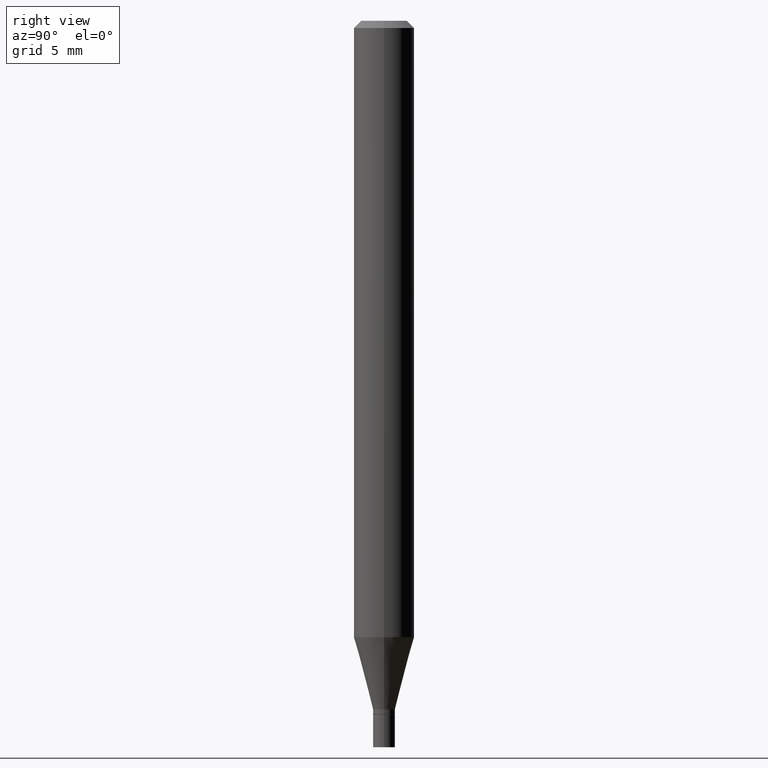
[diagram: clean part render]
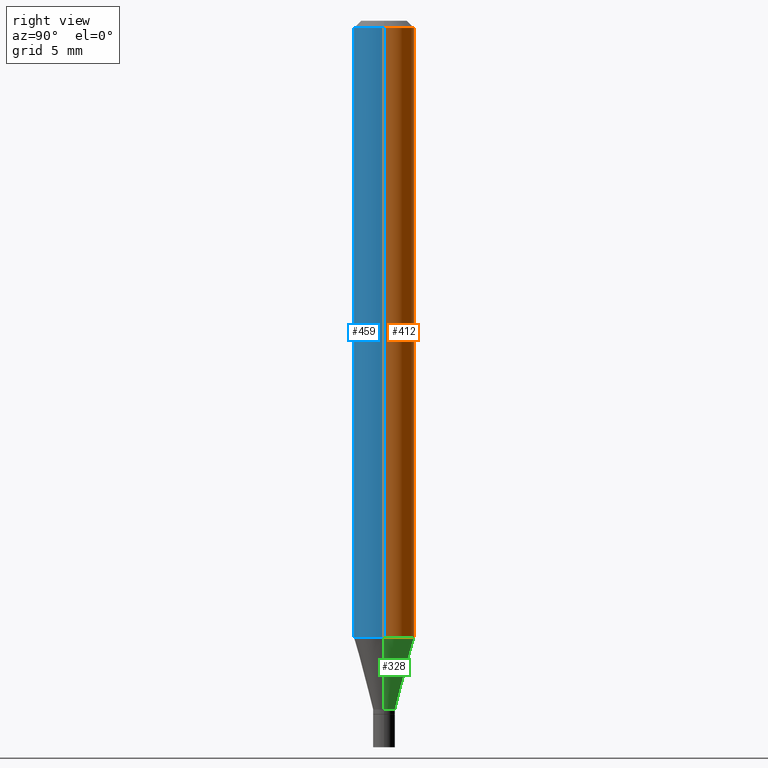
[diagram: same view with three faces highlighted in distinct colors, each labeled with its STEP entity id]
A machine part, right view with three faces highlighted in distinct colors.
Their STEP definitions:

[orange] entity #412 — the highlighted cylindrical surface (edge-blend (fillet) strip) has radius 1.5875 mm, axis along (-0, 0, 1).
#2 = CARTESIAN_POINT ( 'NONE',  ( 0.06250000000000000000, -4.888073874380388472E-16, -0.01499999999999999944 ) ) ;
#18 = VERTEX_POINT ( 'NONE', #124 ) ;
#35 = EDGE_CURVE ( 'NONE', #18, #370, #171, .T. ) ;
#36 = DIRECTION ( 'NONE',  ( -2.445468806185136597E-29, 3.491481338843145583E-15, 1.000000000000000000 ) ) ;
#60 = CARTESIAN_POINT ( 'NONE',  ( -0.06250000000000000000, -1.803932417103912611E-15, -0.01499999999999999944 ) ) ;
#63 = EDGE_CURVE ( 'NONE', #18, #232, #393, .T. ) ;
#94 = ORIENTED_EDGE ( 'NONE', *, *, #35, .F. ) ;
#98 = VECTOR ( 'NONE', #213, 39.37007874015748143 ) ;
#105 = CARTESIAN_POINT ( 'NONE',  ( 3.112392089074953397E-29, -4.443671033825302981E-15, -1.272717967697244434 ) ) ;
#109 = DIRECTION ( 'NONE',  ( 1.000000000000000000, -6.982962677686266711E-15, 4.876176775795935793E-29 ) ) ;
#121 = AXIS2_PLACEMENT_3D ( 'NONE', #391, #132, #205 ) ;
#124 = CARTESIAN_POINT ( 'NONE',  ( 0.06250000000000000000, -4.880106201180694651E-15, -1.272717967697244434 ) ) ;
#127 = CIRCLE ( 'NONE', #121, 0.06250000000000000000 ) ;
#132 = DIRECTION ( 'NONE',  ( -2.445468806185136597E-29, 3.491481338843145583E-15, 1.000000000000000000 ) ) ;
#161 = EDGE_CURVE ( 'NONE', #232, #236, #170, .T. ) ;
#162 = ORIENTED_EDGE ( 'NONE', *, *, #245, .F. ) ;
#170 = LINE ( 'NONE', #415, #98 ) ;
#171 = LINE ( 'NONE', #318, #311 ) ;
#177 = DIRECTION ( 'NONE',  ( 1.000000000000000000, -6.982962677686262766E-15, 0.000000000000000000 ) ) ;
#202 = ORIENTED_EDGE ( 'NONE', *, *, #63, .T. ) ;
#205 = DIRECTION ( 'NONE',  ( 1.000000000000000000, -6.982962677686266711E-15, 0.000000000000000000 ) ) ;
#213 = DIRECTION ( 'NONE',  ( -2.445468806185136877E-29, 3.491481338843145188E-15, 1.000000000000000000 ) ) ;
#232 = VERTEX_POINT ( 'NONE', #455 ) ;
#236 = VERTEX_POINT ( 'NONE', #60 ) ;
#245 = EDGE_CURVE ( 'NONE', #370, #236, #127, .T. ) ;
#251 = FACE_OUTER_BOUND ( 'NONE', #269, .T. ) ;
#258 = AXIS2_PLACEMENT_3D ( 'NONE', #260, #402, #109 ) ;
#260 = CARTESIAN_POINT ( 'NONE',  ( 0.000000000000000000, 0.000000000000000000, 0.000000000000000000 ) ) ;
#269 = EDGE_LOOP ( 'NONE', ( #202, #416, #162, #94 ) ) ;
#311 = VECTOR ( 'NONE', #462, 39.37007874015748143 ) ;
#318 = CARTESIAN_POINT ( 'NONE',  ( 0.06250000000000000000, -4.364351673553916694E-16, 3.047610484872459871E-30 ) ) ;
#370 = VERTEX_POINT ( 'NONE', #2 ) ;
#391 = CARTESIAN_POINT ( 'NONE',  ( 3.668203209277705088E-31, -5.237222008264718399E-17, -0.01499999999999999944 ) ) ;
#393 = CIRCLE ( 'NONE', #444, 0.06250000000000000000 ) ;
#402 = DIRECTION ( 'NONE',  ( -2.445468806185136597E-29, 3.491481338843145583E-15, 1.000000000000000000 ) ) ;
#412 = ADVANCED_FACE ( 'NONE', ( #251 ), #429, .T. ) ;
#415 = CARTESIAN_POINT ( 'NONE',  ( -0.06250000000000000000, 4.440892098500626162E-16, -3.074334431409316114E-30 ) ) ;
#416 = ORIENTED_EDGE ( 'NONE', *, *, #161, .T. ) ;
#429 = CYLINDRICAL_SURFACE ( 'NONE', #258, 0.06250000000000000000 ) ;
#444 = AXIS2_PLACEMENT_3D ( 'NONE', #105, #36, #177 ) ;
#455 = CARTESIAN_POINT ( 'NONE',  ( -0.06250000000000000000, -3.999581823975240365E-15, -1.272717967697244434 ) ) ;
#462 = DIRECTION ( 'NONE',  ( -2.445468806185136877E-29, 3.491481338843145188E-15, 1.000000000000000000 ) ) ;

[blue] entity #459 — the highlighted cylindrical surface (edge-blend (fillet) strip) has radius 1.5875 mm, axis along (-0, 0, 1).
#2 = CARTESIAN_POINT ( 'NONE',  ( 0.06250000000000000000, -4.888073874380388472E-16, -0.01499999999999999944 ) ) ;
#4 = DIRECTION ( 'NONE',  ( 1.000000000000000000, -6.982962677686266711E-15, 0.000000000000000000 ) ) ;
#9 = AXIS2_PLACEMENT_3D ( 'NONE', #248, #388, #382 ) ;
#18 = VERTEX_POINT ( 'NONE', #124 ) ;
#20 = CIRCLE ( 'NONE', #199, 0.06250000000000000000 ) ;
#25 = ORIENTED_EDGE ( 'NONE', *, *, #237, .T. ) ;
#35 = EDGE_CURVE ( 'NONE', #18, #370, #171, .T. ) ;
#41 = FACE_OUTER_BOUND ( 'NONE', #450, .T. ) ;
#60 = CARTESIAN_POINT ( 'NONE',  ( -0.06250000000000000000, -1.803932417103912611E-15, -0.01499999999999999944 ) ) ;
#98 = VECTOR ( 'NONE', #213, 39.37007874015748143 ) ;
#124 = CARTESIAN_POINT ( 'NONE',  ( 0.06250000000000000000, -4.880106201180694651E-15, -1.272717967697244434 ) ) ;
#161 = EDGE_CURVE ( 'NONE', #232, #236, #170, .T. ) ;
#170 = LINE ( 'NONE', #415, #98 ) ;
#171 = LINE ( 'NONE', #318, #311 ) ;
#179 = CARTESIAN_POINT ( 'NONE',  ( 3.668203209277705088E-31, -5.237222008264718399E-17, -0.01499999999999999944 ) ) ;
#183 = CYLINDRICAL_SURFACE ( 'NONE', #420, 0.06250000000000000000 ) ;
#199 = AXIS2_PLACEMENT_3D ( 'NONE', #179, #325, #4 ) ;
#213 = DIRECTION ( 'NONE',  ( -2.445468806185136877E-29, 3.491481338843145188E-15, 1.000000000000000000 ) ) ;
#232 = VERTEX_POINT ( 'NONE', #455 ) ;
#236 = VERTEX_POINT ( 'NONE', #60 ) ;
#237 = EDGE_CURVE ( 'NONE', #232, #18, #270, .T. ) ;
#248 = CARTESIAN_POINT ( 'NONE',  ( 3.112392089074953397E-29, -4.443671033825302981E-15, -1.272717967697244434 ) ) ;
#262 = ORIENTED_EDGE ( 'NONE', *, *, #161, .F. ) ;
#270 = CIRCLE ( 'NONE', #9, 0.06250000000000000000 ) ;
#300 = ORIENTED_EDGE ( 'NONE', *, *, #451, .F. ) ;
#311 = VECTOR ( 'NONE', #462, 39.37007874015748143 ) ;
#318 = CARTESIAN_POINT ( 'NONE',  ( 0.06250000000000000000, -4.364351673553916694E-16, 3.047610484872459871E-30 ) ) ;
#325 = DIRECTION ( 'NONE',  ( -2.445468806185136597E-29, 3.491481338843145583E-15, 1.000000000000000000 ) ) ;
#329 = CARTESIAN_POINT ( 'NONE',  ( 0.000000000000000000, 0.000000000000000000, 0.000000000000000000 ) ) ;
#370 = VERTEX_POINT ( 'NONE', #2 ) ;
#382 = DIRECTION ( 'NONE',  ( 1.000000000000000000, -6.982962677686262766E-15, 0.000000000000000000 ) ) ;
#388 = DIRECTION ( 'NONE',  ( -2.445468806185136597E-29, 3.491481338843145583E-15, 1.000000000000000000 ) ) ;
#399 = DIRECTION ( 'NONE',  ( 1.000000000000000000, -6.982962677686266711E-15, 4.876176775795935793E-29 ) ) ;
#415 = CARTESIAN_POINT ( 'NONE',  ( -0.06250000000000000000, 4.440892098500626162E-16, -3.074334431409316114E-30 ) ) ;
#420 = AXIS2_PLACEMENT_3D ( 'NONE', #329, #433, #399 ) ;
#433 = DIRECTION ( 'NONE',  ( -2.445468806185136597E-29, 3.491481338843145583E-15, 1.000000000000000000 ) ) ;
#450 = EDGE_LOOP ( 'NONE', ( #262, #25, #456, #300 ) ) ;
#451 = EDGE_CURVE ( 'NONE', #236, #370, #20, .T. ) ;
#455 = CARTESIAN_POINT ( 'NONE',  ( -0.06250000000000000000, -3.999581823975240365E-15, -1.272717967697244434 ) ) ;
#456 = ORIENTED_EDGE ( 'NONE', *, *, #35, .T. ) ;
#459 = ADVANCED_FACE ( 'NONE', ( #41 ), #183, .T. ) ;
#462 = DIRECTION ( 'NONE',  ( -2.445468806185136877E-29, 3.491481338843145188E-15, 1.000000000000000000 ) ) ;

[green] entity #328 — the highlighted conical surface has half-angle 15 deg.
#11 = ORIENTED_EDGE ( 'NONE', *, *, #250, .F. ) ;
#18 = VERTEX_POINT ( 'NONE', #124 ) ;
#30 = LINE ( 'NONE', #463, #135 ) ;
#36 = DIRECTION ( 'NONE',  ( -2.445468806185136597E-29, 3.491481338843145583E-15, 1.000000000000000000 ) ) ;
#61 = EDGE_LOOP ( 'NONE', ( #345, #128, #240, #11 ) ) ;
#63 = EDGE_CURVE ( 'NONE', #18, #232, #393, .T. ) ;
#66 = DIRECTION ( 'NONE',  ( -0.2588190451025205729, 5.211531920934544731E-15, 0.9659258262890682012 ) ) ;
#95 = DIRECTION ( 'NONE',  ( -2.445468806185136597E-29, 3.491481338843145583E-15, 1.000000000000000000 ) ) ;
#97 = DIRECTION ( 'NONE',  ( 0.2588190451025205729, 1.565188264969627490E-15, 0.9659258262890682012 ) ) ;
#105 = CARTESIAN_POINT ( 'NONE',  ( 3.112392089074953397E-29, -4.443671033825302981E-15, -1.272717967697244434 ) ) ;
#124 = CARTESIAN_POINT ( 'NONE',  ( 0.06250000000000000000, -4.880106201180694651E-15, -1.272717967697244434 ) ) ;
#128 = ORIENTED_EDGE ( 'NONE', *, *, #194, .T. ) ;
#134 = CARTESIAN_POINT ( 'NONE',  ( 0.02249999999999991937, -5.122003124082893419E-15, -1.421999999999999931 ) ) ;
#135 = VECTOR ( 'NONE', #97, 39.37007874015748854 ) ;
#136 = CARTESIAN_POINT ( 'NONE',  ( 3.477456642395264859E-29, -4.964886463834953365E-15, -1.421999999999999931 ) ) ;
#169 = EDGE_CURVE ( 'NONE', #204, #385, #215, .T. ) ;
#177 = DIRECTION ( 'NONE',  ( 1.000000000000000000, -6.982962677686262766E-15, 0.000000000000000000 ) ) ;
#194 = EDGE_CURVE ( 'NONE', #385, #232, #283, .T. ) ;
#203 = DIRECTION ( 'NONE',  ( -2.445468806185136597E-29, 3.491481338843145583E-15, 1.000000000000000000 ) ) ;
#204 = VERTEX_POINT ( 'NONE', #134 ) ;
#211 = CARTESIAN_POINT ( 'NONE',  ( -0.02249999999999991937, -4.805014348288931075E-15, -1.421999999999999931 ) ) ;
#215 = CIRCLE ( 'NONE', #294, 0.02249999999999991937 ) ;
#232 = VERTEX_POINT ( 'NONE', #455 ) ;
#240 = ORIENTED_EDGE ( 'NONE', *, *, #63, .F. ) ;
#243 = DIRECTION ( 'NONE',  ( 1.000000000000000000, -6.982962677686249356E-15, 0.000000000000000000 ) ) ;
#250 = EDGE_CURVE ( 'NONE', #204, #18, #30, .T. ) ;
#263 = AXIS2_PLACEMENT_3D ( 'NONE', #314, #203, #243 ) ;
#283 = LINE ( 'NONE', #211, #428 ) ;
#284 = FACE_OUTER_BOUND ( 'NONE', #61, .T. ) ;
#294 = AXIS2_PLACEMENT_3D ( 'NONE', #136, #95, #320 ) ;
#314 = CARTESIAN_POINT ( 'NONE',  ( 3.477456642395264859E-29, -4.964886463834953365E-15, -1.421999999999999931 ) ) ;
#320 = DIRECTION ( 'NONE',  ( 1.000000000000000000, -6.982962677686249356E-15, 0.000000000000000000 ) ) ;
#328 = ADVANCED_FACE ( 'NONE', ( #284 ), #436, .T. ) ;
#345 = ORIENTED_EDGE ( 'NONE', *, *, #169, .T. ) ;
#385 = VERTEX_POINT ( 'NONE', #465 ) ;
#393 = CIRCLE ( 'NONE', #444, 0.06250000000000000000 ) ;
#428 = VECTOR ( 'NONE', #66, 39.37007874015748854 ) ;
#436 = CONICAL_SURFACE ( 'NONE', #263, 0.02249999999999991937, 0.2617993877991492968 ) ;
#444 = AXIS2_PLACEMENT_3D ( 'NONE', #105, #36, #177 ) ;
#455 = CARTESIAN_POINT ( 'NONE',  ( -0.06250000000000000000, -3.999581823975240365E-15, -1.272717967697244434 ) ) ;
#463 = CARTESIAN_POINT ( 'NONE',  ( 0.02249999999999991937, -5.122003124082893419E-15, -1.421999999999999931 ) ) ;
#465 = CARTESIAN_POINT ( 'NONE',  ( -0.02249999999999991937, -4.402298086132085720E-15, -1.421999999999999931 ) ) ;